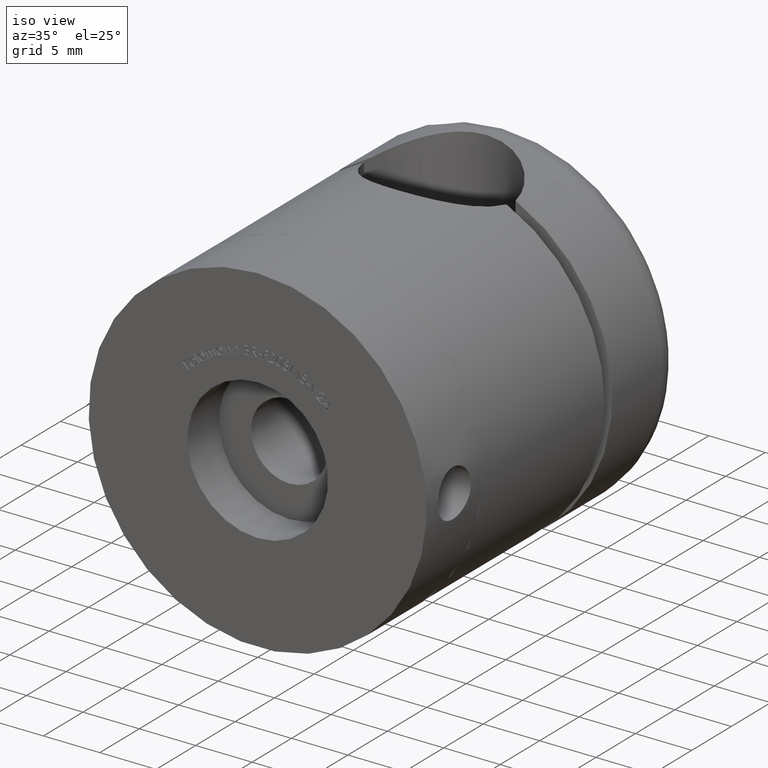
[diagram: clean part render]
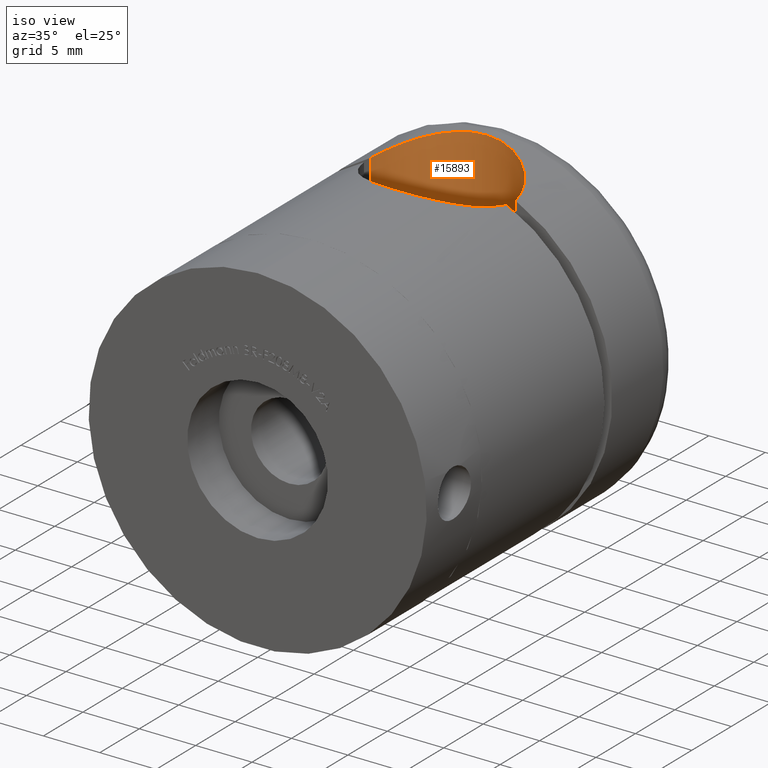
[diagram: same view with one face highlighted and labeled with its STEP entity id]
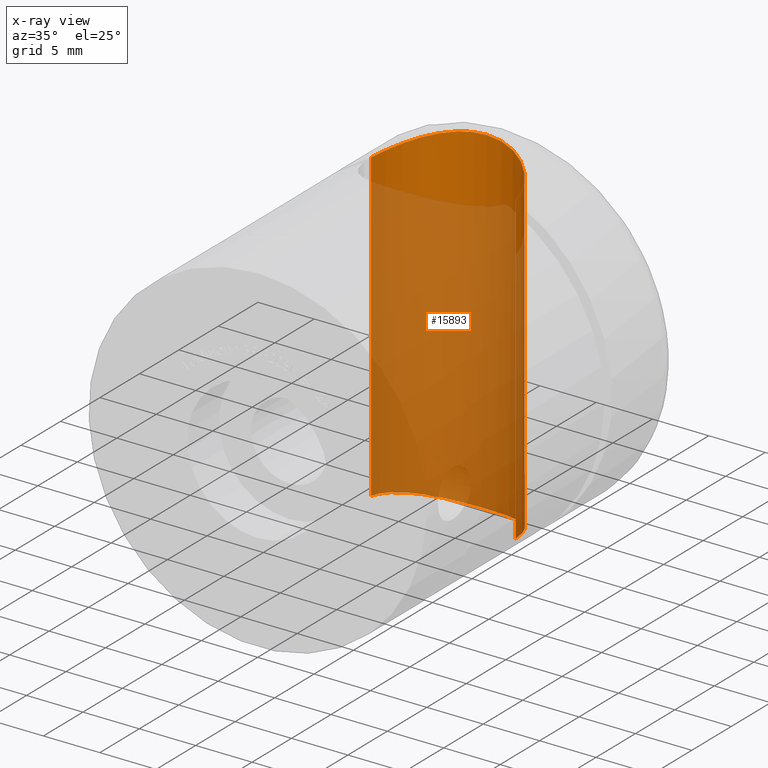
[diagram: x-ray of the same camera — body ghosted, the highlighted face saturated]
A machine part, iso view. The second image highlights one B-rep face of the part: STEP entity #15893.
The next image is the same camera in x-ray: the body ghosted, the highlighted face saturated — about 83% of this face is hidden behind the body in this view.
In plain terms, the highlighted cylindrical surface (partial cylindrical patch) has radius 6.5 mm, axis along (0, 0, -1).
Its self-contained STEP definition (entity closure, byte-faithful):
#97 = CARTESIAN_POINT ( 'NONE',  ( -6.362335356026252800, 9.612838695810705000, -13.58400303141017000 ) ) ;
#406 = VERTEX_POINT ( 'NONE', #7781 ) ;
#450 = CARTESIAN_POINT ( 'NONE',  ( 6.422616289332565600, 10.00000000000000000, -13.55544171172595800 ) ) ;
#614 = CARTESIAN_POINT ( 'NONE',  ( 6.268600191724271300, 9.238995592914273300, 13.62803814488685800 ) ) ;
#665 = CARTESIAN_POINT ( 'NONE',  ( 6.018616049374003300, 8.515498896019840600, 13.74027048104928600 ) ) ;
#716 = CARTESIAN_POINT ( 'NONE',  ( 4.794949442457275200, 6.595283377089410600, 14.21523748673799400 ) ) ;
#950 = VERTEX_POINT ( 'NONE', #9293 ) ;
#1210 = EDGE_CURVE ( 'NONE', #8391, #10436, #7828, .T. ) ;
#1303 = CARTESIAN_POINT ( 'NONE',  ( -6.422616289332565600, 10.00000000000000000, -13.55544171172595800 ) ) ;
#1368 = VECTOR ( 'NONE', #5446, 1000.000000000000000 ) ;
#1425 = CARTESIAN_POINT ( 'NONE',  ( -1.548046214029646000, 4.675241517022075600, -14.92476585482033600 ) ) ;
#1543 = CARTESIAN_POINT ( 'NONE',  ( 6.268175377190915200, 9.236370881951169000, -13.62825674477519800 ) ) ;
#1998 = FACE_OUTER_BOUND ( 'NONE', #2733, .T. ) ;
#2011 = CARTESIAN_POINT ( 'NONE',  ( -6.362337558146444700, 9.612852839183720000, 13.58400198803782800 ) ) ;
#2067 = CARTESIAN_POINT ( 'NONE',  ( -2.630203216957173000, 5.043526561589984200, 14.77208900755862200 ) ) ;
#2578 = B_SPLINE_CURVE_WITH_KNOTS ( 'NONE', 3,
 ( #1303, #97, #11940, #12000, #12113, #3975, #13276, #4155, #5499, #8006, #6794, #4036, #6729, #10720, #2782, #9397, #1425, #14759, #12054, #4096, #13394, #16061, #8124, #10782, #6850, #7127, #4210, #11006, #14816, #4440, #5667, #14934, #12180, #1543, #8298, #9630 ),
 .UNSPECIFIED., .F., .F.,
 ( 4, 2, 2, 2, 2, 2, 2, 2, 2, 2, 2, 2, 2, 2, 2, 2, 2, 4 ),
 ( 0.0000000000000000000, 0.001160339608434550000, 0.002320679216869099900, 0.003481018825303649900, 0.004641358433738199800, 0.005801698042172748900, 0.006381867846390024300, 0.006962037650607299700, 0.008122377259041852300, 0.009282716867476403100, 0.01044305647591095600, 0.01160339608434550600, 0.01276373569278005600, 0.01392407530121460600, 0.01508441490964915900, 0.01624475451808371100, 0.01740509412651826800, 0.01856543373495282700 ),
 .UNSPECIFIED. ) ;
#2733 = EDGE_LOOP ( 'NONE', ( #6662, #4051, #5325, #7815 ) ) ;
#2782 = CARTESIAN_POINT ( 'NONE',  ( -2.458690643464422500, 4.979877777448733100, -14.79824613081686200 ) ) ;
#2998 = CARTESIAN_POINT ( 'NONE',  ( 3.950822678620542000, 5.824536906839102600, 14.47346546143835000 ) ) ;
#3290 = CARTESIAN_POINT ( 'NONE',  ( 2.637460770363953000, 5.056020661312689200, 14.76736438160729200 ) ) ;
#3379 = EDGE_CURVE ( 'NONE', #406, #10436, #2578, .T. ) ;
#3389 = CARTESIAN_POINT ( 'NONE',  ( 1.918015273664549500, 4.777513163625822100, 14.88133765237430200 ) ) ;
#3975 = CARTESIAN_POINT ( 'NONE',  ( -5.486938340650330500, 7.494218994460954500, -13.96188866820116700 ) ) ;
#4036 = CARTESIAN_POINT ( 'NONE',  ( -3.153176283947181500, 5.312855872061488700, -14.66579610677816700 ) ) ;
#4051 = ORIENTED_EDGE ( 'NONE', *, *, #1210, .T. ) ;
#4066 = CYLINDRICAL_SURFACE ( 'NONE', #15595, 6.500000000000000900 ) ;
#4096 = CARTESIAN_POINT ( 'NONE',  ( 0.3827388003578785500, 4.499649296997374900, -15.00015197124991500 ) ) ;
#4155 = CARTESIAN_POINT ( 'NONE',  ( -4.794949442457275200, 6.595283377089410600, -14.21523748673799400 ) ) ;
#4210 = CARTESIAN_POINT ( 'NONE',  ( 3.947622483528450600, 5.822221790141216300, -14.47431450835092200 ) ) ;
#4320 = CARTESIAN_POINT ( 'NONE',  ( -3.947622483528450600, 5.822221790141216300, 14.47431450835092200 ) ) ;
#4440 = CARTESIAN_POINT ( 'NONE',  ( 5.271658729829376000, 7.178275941768724500, -14.04548322157315200 ) ) ;
#5265 = CARTESIAN_POINT ( 'NONE',  ( 6.422616289332565600, 10.00000000000000000, -15.00000000000000000 ) ) ;
#5325 = ORIENTED_EDGE ( 'NONE', *, *, #3379, .F. ) ;
#5446 = DIRECTION ( 'NONE',  ( 0.0000000000000000000, 0.0000000000000000000, -1.000000000000000000 ) ) ;
#5499 = CARTESIAN_POINT ( 'NONE',  ( -4.527012842098861800, 6.320195218383042300, -14.30371829381518500 ) ) ;
#5550 = CARTESIAN_POINT ( 'NONE',  ( 5.273488689556581100, 7.181180061198875600, 14.04474399913367200 ) ) ;
#5603 = CARTESIAN_POINT ( 'NONE',  ( 2.984750547377585500, 5.222599731377471200, 14.70110588575912800 ) ) ;
#5657 = CARTESIAN_POINT ( 'NONE',  ( -4.521627670629979600, 6.315131413674330400, 14.30539712721428600 ) ) ;
#5667 = CARTESIAN_POINT ( 'NONE',  ( 5.484849319888041000, 7.491397833565475400, -13.96268398159988400 ) ) ;
#6013 = CARTESIAN_POINT ( 'NONE',  ( 5.486938340650330500, 7.494218994460954500, 13.96188866820116700 ) ) ;
#6662 = ORIENTED_EDGE ( 'NONE', *, *, #14705, .F. ) ;
#6729 = CARTESIAN_POINT ( 'NONE',  ( -2.984750547377585500, 5.222599731377471200, -14.70110588575912800 ) ) ;
#6786 = CARTESIAN_POINT ( 'NONE',  ( 6.422616289332565600, 10.00000000000000000, 13.55544171172595800 ) ) ;
#6794 = CARTESIAN_POINT ( 'NONE',  ( -3.643586982179250800, 5.603817095236333800, -14.55460952400442100 ) ) ;
#6850 = CARTESIAN_POINT ( 'NONE',  ( 2.975436480609576800, 5.208240311569190900, -14.70584423967362900 ) ) ;
#6899 = CARTESIAN_POINT ( 'NONE',  ( -0.7679343891342255100, 4.533877340496638400, 14.98522259096836600 ) ) ;
#6952 = CARTESIAN_POINT ( 'NONE',  ( -1.910354660685002800, 4.775203629404816600, 14.88230921867050900 ) ) ;
#7006 = CARTESIAN_POINT ( 'NONE',  ( -5.484849319888041000, 7.491397833565475400, 13.96268398159988400 ) ) ;
#7127 = CARTESIAN_POINT ( 'NONE',  ( 3.637209727890963900, 5.599221543702261000, -14.55629700325668600 ) ) ;
#7201 = DIRECTION ( 'NONE',  ( 1.000000000000000000, 0.0000000000000000000, 0.0000000000000000000 ) ) ;
#7781 = CARTESIAN_POINT ( 'NONE',  ( -6.422616289332565600, 10.00000000000000000, -13.55544171172595800 ) ) ;
#7815 = ORIENTED_EDGE ( 'NONE', *, *, #8030, .T. ) ;
#7828 = LINE ( 'NONE', #5265, #1368 ) ;
#8006 = CARTESIAN_POINT ( 'NONE',  ( -3.950822678620542000, 5.824536906839102600, -14.47346546143835000 ) ) ;
#8030 = EDGE_CURVE ( 'NONE', #406, #950, #14565, .T. ) ;
#8124 = CARTESIAN_POINT ( 'NONE',  ( 1.910354660685002800, 4.775203629404816600, -14.88230921867050900 ) ) ;
#8292 = CARTESIAN_POINT ( 'NONE',  ( 4.527012842098861800, 6.320195218383042300, 14.30371829381518500 ) ) ;
#8298 = CARTESIAN_POINT ( 'NONE',  ( 6.362337558146444700, 9.612852839183720000, -13.58400198803782800 ) ) ;
#8391 = VERTEX_POINT ( 'NONE', #6786 ) ;
#8642 = CARTESIAN_POINT ( 'NONE',  ( -0.3827388003578785500, 4.499649296997374900, 15.00015197124991500 ) ) ;
#8660 = CARTESIAN_POINT ( 'NONE',  ( 0.0000000000000000000, 11.00000000000000000, -15.00000000000000000 ) ) ;
#8961 = CARTESIAN_POINT ( 'NONE',  ( -6.422616289332565600, 10.00000000000000000, -15.00000000000000000 ) ) ;
#9293 = CARTESIAN_POINT ( 'NONE',  ( -6.422616289332565600, 10.00000000000000000, 13.55544171172595800 ) ) ;
#9397 = CARTESIAN_POINT ( 'NONE',  ( -1.918015273664549500, 4.777513163625822100, -14.88133765237430200 ) ) ;
#9567 = CARTESIAN_POINT ( 'NONE',  ( 5.861027830435243200, 8.163568159859908100, 13.80902532071711500 ) ) ;
#9630 = CARTESIAN_POINT ( 'NONE',  ( 6.422616289332565600, 10.00000000000000000, -13.55544171172595800 ) ) ;
#9918 = CARTESIAN_POINT ( 'NONE',  ( -6.268175377190915200, 9.236370881951169000, 13.62825674477519800 ) ) ;
#9972 = CARTESIAN_POINT ( 'NONE',  ( -5.855705260370522000, 8.153146100015964800, 13.81125743499017300 ) ) ;
#10361 = B_SPLINE_CURVE_WITH_KNOTS ( 'NONE', 3,
 ( #12583, #13557, #614, #665, #9567, #6013, #5550, #716, #8292, #2998, #11291, #11231, #5603, #3290, #14808, #3389, #14865, #15216, #16568, #8642, #6899, #10881, #6952, #2067, #12281, #11348, #4320, #5657, #12639, #14924, #7006, #9972, #16275, #9918, #2011, #15279 ),
 .UNSPECIFIED., .F., .F.,
 ( 4, 2, 2, 2, 2, 2, 2, 2, 2, 2, 2, 2, 2, 2, 2, 2, 2, 4 ),
 ( 0.0000000000000000000, 0.001160339608434550000, 0.002320679216869099900, 0.003481018825303649900, 0.004641358433738199800, 0.005801698042172748900, 0.006381867846390024300, 0.006962037650607299700, 0.008122377259041852300, 0.009282716867476403100, 0.01044305647591095600, 0.01160339608434550600, 0.01276373569278005600, 0.01392407530121460600, 0.01508441490964915900, 0.01624475451808371100, 0.01740509412651826800, 0.01856543373495282700 ),
 .UNSPECIFIED. ) ;
#10436 = VERTEX_POINT ( 'NONE', #450 ) ;
#10720 = CARTESIAN_POINT ( 'NONE',  ( -2.637460770363953000, 5.056020661312689200, -14.76736438160729200 ) ) ;
#10782 = CARTESIAN_POINT ( 'NONE',  ( 2.630203216957173000, 5.043526561589984200, -14.77208900755862200 ) ) ;
#10881 = CARTESIAN_POINT ( 'NONE',  ( -1.531499593099914900, 4.671100058454663400, 14.92652432159671800 ) ) ;
#11006 = CARTESIAN_POINT ( 'NONE',  ( 4.521627670629979600, 6.315131413674330400, -14.30539712721428600 ) ) ;
#11231 = CARTESIAN_POINT ( 'NONE',  ( 3.153176283947181500, 5.312855872061488700, 14.66579610677816700 ) ) ;
#11291 = CARTESIAN_POINT ( 'NONE',  ( 3.643586982179250800, 5.603817095236333800, 14.55460952400442100 ) ) ;
#11306 = DIRECTION ( 'NONE',  ( -0.0000000000000000000, -0.0000000000000000000, 1.000000000000000000 ) ) ;
#11348 = CARTESIAN_POINT ( 'NONE',  ( -3.637209727890963900, 5.599221543702261000, 14.55629700325668600 ) ) ;
#11845 = DIRECTION ( 'NONE',  ( -0.0000000000000000000, -0.0000000000000000000, 1.000000000000000000 ) ) ;
#11940 = CARTESIAN_POINT ( 'NONE',  ( -6.268600191724271300, 9.238995592914273300, -13.62803814488685800 ) ) ;
#12000 = CARTESIAN_POINT ( 'NONE',  ( -6.018616049374003300, 8.515498896019840600, -13.74027048104928600 ) ) ;
#12054 = CARTESIAN_POINT ( 'NONE',  ( -0.3945594086751044700, 4.500356077110681400, -14.99984569997031700 ) ) ;
#12113 = CARTESIAN_POINT ( 'NONE',  ( -5.861027830435243200, 8.163568159859908100, -13.80902532071711500 ) ) ;
#12180 = CARTESIAN_POINT ( 'NONE',  ( 6.013994173351926900, 8.503545652702378300, -13.74231707331853900 ) ) ;
#12281 = CARTESIAN_POINT ( 'NONE',  ( -2.975436480609576800, 5.208240311569190900, 14.70584423967362900 ) ) ;
#12583 = CARTESIAN_POINT ( 'NONE',  ( 6.422616289332565600, 10.00000000000000000, 13.55544171172595800 ) ) ;
#12639 = CARTESIAN_POINT ( 'NONE',  ( -4.787651154022804600, 6.587024023582937800, 14.21774880628657600 ) ) ;
#13276 = CARTESIAN_POINT ( 'NONE',  ( -5.273488689556581100, 7.181180061198875600, -14.04474399913367200 ) ) ;
#13394 = CARTESIAN_POINT ( 'NONE',  ( 0.7679343891342255100, 4.533877340496638400, -14.98522259096836600 ) ) ;
#13557 = CARTESIAN_POINT ( 'NONE',  ( 6.362335356026252800, 9.612838695810705000, 13.58400303141017000 ) ) ;
#14565 = LINE ( 'NONE', #8961, #15405 ) ;
#14705 = EDGE_CURVE ( 'NONE', #8391, #950, #10361, .T. ) ;
#14759 = CARTESIAN_POINT ( 'NONE',  ( -0.7885654122963266000, 4.536472979920121800, -14.98409982256232600 ) ) ;
#14808 = CARTESIAN_POINT ( 'NONE',  ( 2.458690643464422500, 4.979877777448733100, 14.79824613081686200 ) ) ;
#14816 = CARTESIAN_POINT ( 'NONE',  ( 4.787651154022804600, 6.587024023582937800, -14.21774880628657600 ) ) ;
#14865 = CARTESIAN_POINT ( 'NONE',  ( 1.548046214029646000, 4.675241517022075600, 14.92476585482033600 ) ) ;
#14924 = CARTESIAN_POINT ( 'NONE',  ( -5.271658729829376000, 7.178275941768724500, 14.04548322157315200 ) ) ;
#14934 = CARTESIAN_POINT ( 'NONE',  ( 5.855705260370522000, 8.153146100015964800, -13.81125743499017300 ) ) ;
#15216 = CARTESIAN_POINT ( 'NONE',  ( 0.7885654122963266000, 4.536472979920121800, 14.98409982256232600 ) ) ;
#15279 = CARTESIAN_POINT ( 'NONE',  ( -6.422616289332565600, 10.00000000000000000, 13.55544171172595800 ) ) ;
#15405 = VECTOR ( 'NONE', #11845, 1000.000000000000000 ) ;
#15595 = AXIS2_PLACEMENT_3D ( 'NONE', #8660, #11306, #7201 ) ;
#15893 = ADVANCED_FACE ( 'NONE', ( #1998 ), #4066, .F. ) ;
#16061 = CARTESIAN_POINT ( 'NONE',  ( 1.531499593099914900, 4.671100058454663400, -14.92652432159671800 ) ) ;
#16275 = CARTESIAN_POINT ( 'NONE',  ( -6.013994173351926900, 8.503545652702378300, 13.74231707331853900 ) ) ;
#16568 = CARTESIAN_POINT ( 'NONE',  ( 0.3945594086751044700, 4.500356077110681400, 14.99984569997031700 ) ) ;